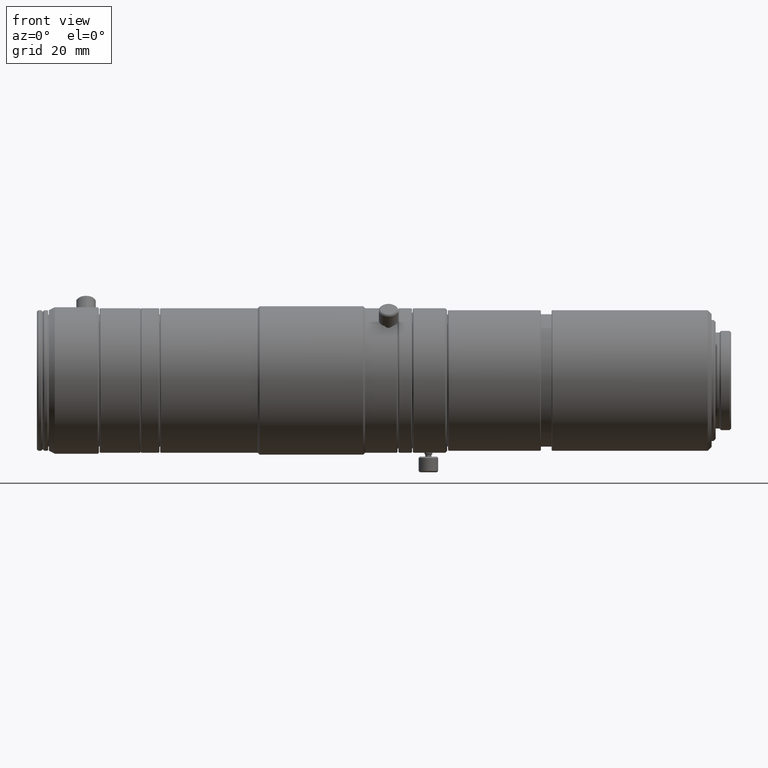
[diagram: clean part render]
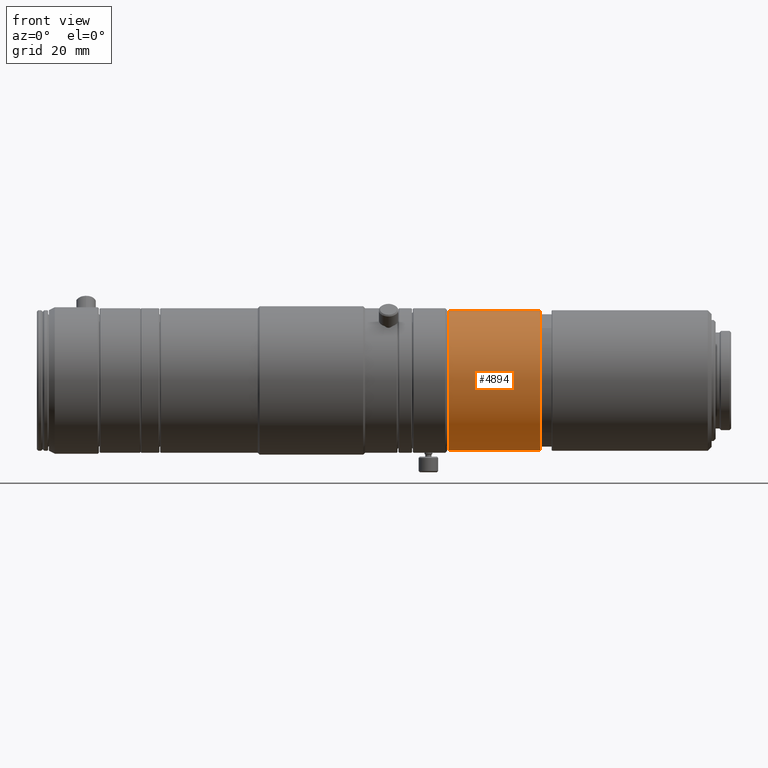
[diagram: same view with one face highlighted and labeled with its STEP entity id]
A machine part, front view. The second image highlights one B-rep face of the part: STEP entity #4894.
In plain terms, the highlighted cylindrical surface (partial cylindrical patch) has radius 18 mm, axis along (1, -0, -0).
Its self-contained STEP definition (entity closure, byte-faithful):
#395 = ORIENTED_EDGE ( 'NONE', *, *, #5380, .F. ) ;
#396 = ORIENTED_EDGE ( 'NONE', *, *, #5827, .T. ) ;
#420 = ORIENTED_EDGE ( 'NONE', *, *, #5369, .T. ) ;
#432 = ORIENTED_EDGE ( 'NONE', *, *, #5829, .F. ) ;
#551 = VERTEX_POINT ( 'NONE', #4858 ) ;
#567 = VERTEX_POINT ( 'NONE', #4842 ) ;
#568 = VERTEX_POINT ( 'NONE', #4841 ) ;
#570 = VERTEX_POINT ( 'NONE', #4839 ) ;
#824 = FACE_OUTER_BOUND ( 'NONE', #5632, .T. ) ;
#827 = CYLINDRICAL_SURFACE ( 'NONE', #4996, 18.00000000000014200 ) ;
#1242 = DIRECTION ( 'NONE',  ( 0.0000000000000000000, 0.0000000000000000000, -1.000000000000000000 ) ) ;
#1244 = DIRECTION ( 'NONE',  ( 1.000000000000000000, -0.0000000000000000000, -0.0000000000000000000 ) ) ;
#1246 = CARTESIAN_POINT ( 'NONE',  ( 0.0000000000000000000, 0.0000000000000000000, 0.0000000000000000000 ) ) ;
#1830 = DIRECTION ( 'NONE',  ( 1.000000000000000000, -0.0000000000000000000, -0.0000000000000000000 ) ) ;
#1834 = CARTESIAN_POINT ( 'NONE',  ( 0.0000000000000000000, 0.0000000000000000000, -18.00000000000014200 ) ) ;
#1864 = CARTESIAN_POINT ( 'NONE',  ( 0.0000000000000000000, 2.204364238465252800E-015, 18.00000000000014200 ) ) ;
#1865 = DIRECTION ( 'NONE',  ( 1.000000000000000000, -0.0000000000000000000, -0.0000000000000000000 ) ) ;
#2088 = LINE ( 'NONE', #1834, #2093 ) ;
#2093 = VECTOR ( 'NONE', #1830, 1000.000000000000000 ) ;
#2106 = LINE ( 'NONE', #1864, #2109 ) ;
#2109 = VECTOR ( 'NONE', #1865, 1000.000000000000000 ) ;
#2278 = CIRCLE ( 'NONE', #4269, 18.00000000000014200 ) ;
#2280 = CIRCLE ( 'NONE', #4271, 18.00000000000014200 ) ;
#2824 = CARTESIAN_POINT ( 'NONE',  ( -85.87219436237681700, 0.0000000000000000000, 0.0000000000000000000 ) ) ;
#2825 = DIRECTION ( 'NONE',  ( 1.000000000000000000, -0.0000000000000000000, -0.0000000000000000000 ) ) ;
#2826 = DIRECTION ( 'NONE',  ( 0.0000000000000000000, 0.0000000000000000000, -1.000000000000000000 ) ) ;
#2830 = CARTESIAN_POINT ( 'NONE',  ( -62.47219436237682500, 0.0000000000000000000, 0.0000000000000000000 ) ) ;
#2831 = DIRECTION ( 'NONE',  ( 1.000000000000000000, -0.0000000000000000000, -0.0000000000000000000 ) ) ;
#2832 = DIRECTION ( 'NONE',  ( 0.0000000000000000000, 0.0000000000000000000, -1.000000000000000000 ) ) ;
#4269 = AXIS2_PLACEMENT_3D ( 'NONE', #2824, #2825, #2826 ) ;
#4271 = AXIS2_PLACEMENT_3D ( 'NONE', #2830, #2831, #2832 ) ;
#4839 = CARTESIAN_POINT ( 'NONE',  ( -85.87219436237681700, 2.204364238465252800E-015, 18.00000000000014200 ) ) ;
#4841 = CARTESIAN_POINT ( 'NONE',  ( -62.47219436237682500, 0.0000000000000000000, 18.00000000000014200 ) ) ;
#4842 = CARTESIAN_POINT ( 'NONE',  ( -85.87219436237681700, 0.0000000000000000000, -18.00000000000014200 ) ) ;
#4858 = CARTESIAN_POINT ( 'NONE',  ( -62.47219436237682500, 2.204364238465252800E-015, -18.00000000000014200 ) ) ;
#4894 = ADVANCED_FACE ( 'NONE', ( #824 ), #827, .T. ) ;
#4996 = AXIS2_PLACEMENT_3D ( 'NONE', #1246, #1244, #1242 ) ;
#5369 = EDGE_CURVE ( 'NONE', #567, #551, #2088, .T. ) ;
#5380 = EDGE_CURVE ( 'NONE', #570, #568, #2106, .T. ) ;
#5632 = EDGE_LOOP ( 'NONE', ( #395, #396, #420, #432 ) ) ;
#5827 = EDGE_CURVE ( 'NONE', #570, #567, #2278, .T. ) ;
#5829 = EDGE_CURVE ( 'NONE', #568, #551, #2280, .T. ) ;